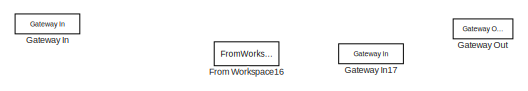
[diagram: root canvas - part 1/5, top center region]
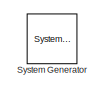
[diagram: root canvas - part 2/5, top left region]
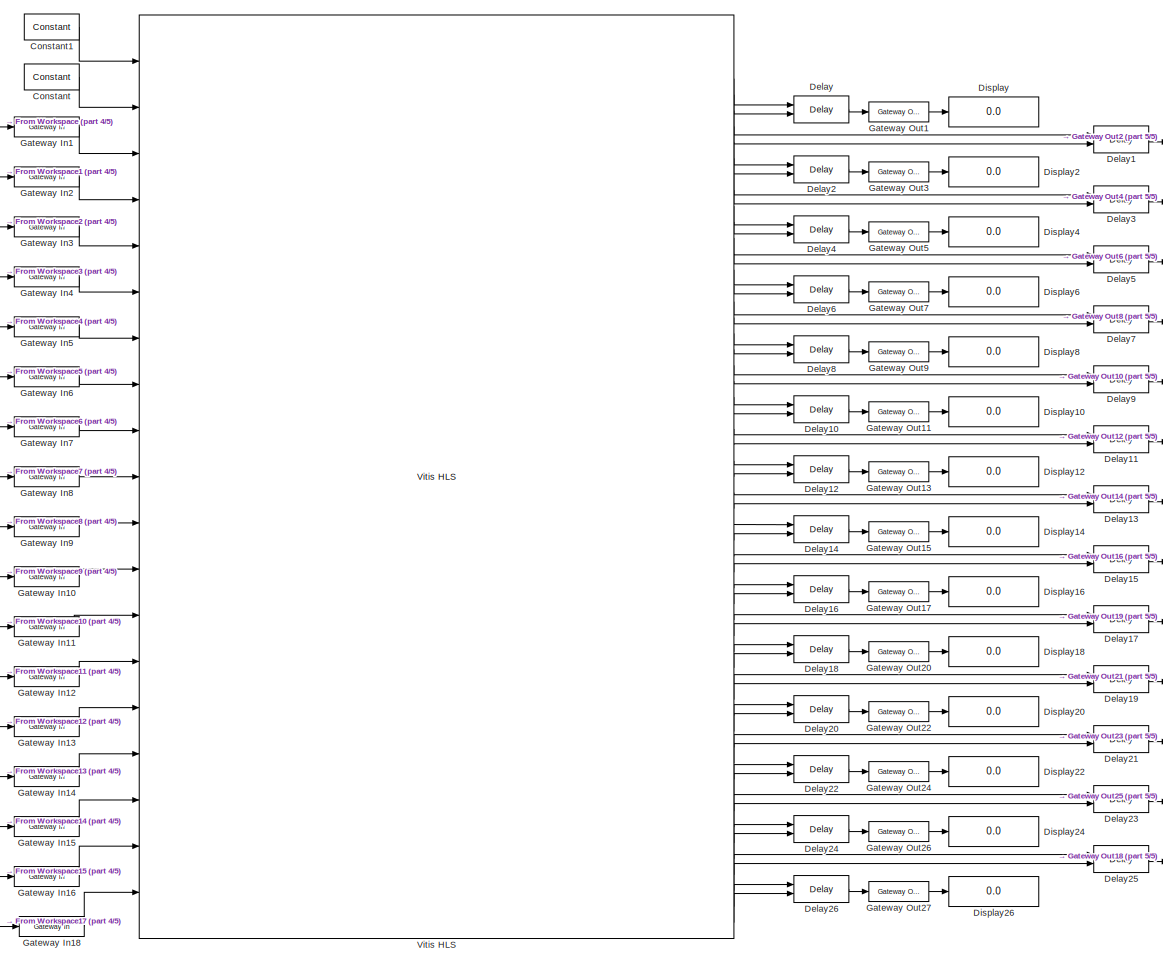
[diagram: root canvas - part 3/5, center side, full height]
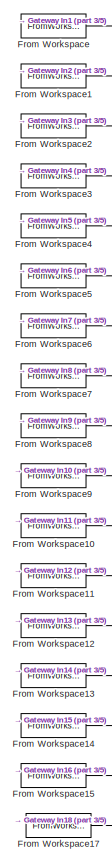
[diagram: root canvas - part 4/5, middle left region]
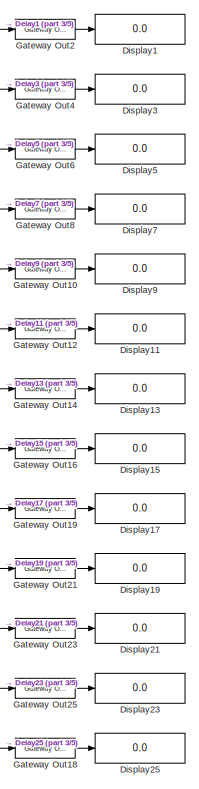
[diagram: root canvas - part 5/5, middle right region]
MODEL slx_e1543b696a08
KIND model
CONFIG AbsTol = auto
CONFIG EnableMultiTasking = off
CONFIG FixedStep = auto
CONFIG MaxStep = auto
CONFIG MinStep = auto
CONFIG RelTol = 1e-3
CONFIG SampleTimeConstraint = Unconstrained
CONFIG SolverName = VariableStepAuto
CONFIG StartTime = 0.0
CONFIG StopTime = 1000
BLOCK [Reference]  System Generator  REF=xbsIndex_r4/ System Generator
  AttributesFormatString = System\nGenerator
  Ports = []
  SourceBlock = xbsIndex_r4/ System Generator
  SourceType = Xilinx System Generator Block
  Tag = genX
  UserDataPersistent = on
BLOCK [Reference] Constant  REF=hdlBasic/Constant
  Ports = [0, 1]
  SourceBlock = hdlBasic/Constant
  SourceType = Constant Block Block
BLOCK [Reference] Constant1  REF=hdlBasic/Constant
  Ports = [0, 1]
  SourceBlock = hdlBasic/Constant
  SourceType = Constant Block Block
BLOCK [Reference] Delay  REF=hdlBasic/Delay
  Ports = [2, 1]
  SourceBlock = hdlBasic/Delay
  SourceType = Delay Block
BLOCK [Reference] Delay1  REF=hdlBasic/Delay
  Ports = [2, 1]
  SourceBlock = hdlBasic/Delay
  SourceType = Delay Block
BLOCK [Reference] Delay10  REF=hdlBasic/Delay
  Ports = [2, 1]
  SourceBlock = hdlBasic/Delay
  SourceType = Delay Block
BLOCK [Reference] Delay11  REF=hdlBasic/Delay
  Ports = [2, 1]
  SourceBlock = hdlBasic/Delay
  SourceType = Delay Block
BLOCK [Reference] Delay12  REF=hdlBasic/Delay
  Ports = [2, 1]
  SourceBlock = hdlBasic/Delay
  SourceType = Delay Block
BLOCK [Reference] Delay13  REF=hdlBasic/Delay
  Ports = [2, 1]
  SourceBlock = hdlBasic/Delay
  SourceType = Delay Block
BLOCK [Reference] Delay14  REF=hdlBasic/Delay
  Ports = [2, 1]
  SourceBlock = hdlBasic/Delay
  SourceType = Delay Block
BLOCK [Reference] Delay15  REF=hdlBasic/Delay
  Ports = [2, 1]
  SourceBlock = hdlBasic/Delay
  SourceType = Delay Block
BLOCK [Reference] Delay16  REF=hdlBasic/Delay
  Ports = [2, 1]
  SourceBlock = hdlBasic/Delay
  SourceType = Delay Block
BLOCK [Reference] Delay17  REF=hdlBasic/Delay
  Ports = [2, 1]
  SourceBlock = hdlBasic/Delay
  SourceType = Delay Block
BLOCK [Reference] Delay18  REF=hdlBasic/Delay
  Ports = [2, 1]
  SourceBlock = hdlBasic/Delay
  SourceType = Delay Block
BLOCK [Reference] Delay19  REF=hdlBasic/Delay
  Ports = [2, 1]
  SourceBlock = hdlBasic/Delay
  SourceType = Delay Block
BLOCK [Reference] Delay2  REF=hdlBasic/Delay
  Ports = [2, 1]
  SourceBlock = hdlBasic/Delay
  SourceType = Delay Block
BLOCK [Reference] Delay20  REF=hdlBasic/Delay
  Ports = [2, 1]
  SourceBlock = hdlBasic/Delay
  SourceType = Delay Block
BLOCK [Reference] Delay21  REF=hdlBasic/Delay
  Ports = [2, 1]
  SourceBlock = hdlBasic/Delay
  SourceType = Delay Block
BLOCK [Reference] Delay22  REF=hdlBasic/Delay
  Ports = [2, 1]
  SourceBlock = hdlBasic/Delay
  SourceType = Delay Block
BLOCK [Reference] Delay23  REF=hdlBasic/Delay
  Ports = [2, 1]
  SourceBlock = hdlBasic/Delay
  SourceType = Delay Block
BLOCK [Reference] Delay24  REF=hdlBasic/Delay
  Ports = [2, 1]
  SourceBlock = hdlBasic/Delay
  SourceType = Delay Block
BLOCK [Reference] Delay25  REF=hdlBasic/Delay
  Ports = [2, 1]
  SourceBlock = hdlBasic/Delay
  SourceType = Delay Block
BLOCK [Reference] Delay26  REF=hdlBasic/Delay
  Ports = [2, 1]
  SourceBlock = hdlBasic/Delay
  SourceType = Delay Block
BLOCK [Reference] Delay3  REF=hdlBasic/Delay
  Ports = [2, 1]
  SourceBlock = hdlBasic/Delay
  SourceType = Delay Block
BLOCK [Reference] Delay4  REF=hdlBasic/Delay
  Ports = [2, 1]
  SourceBlock = hdlBasic/Delay
  SourceType = Delay Block
BLOCK [Reference] Delay5  REF=hdlBasic/Delay
  Ports = [2, 1]
  SourceBlock = hdlBasic/Delay
  SourceType = Delay Block
BLOCK [Reference] Delay6  REF=hdlBasic/Delay
  Ports = [2, 1]
  SourceBlock = hdlBasic/Delay
  SourceType = Delay Block
BLOCK [Reference] Delay7  REF=hdlBasic/Delay
  Ports = [2, 1]
  SourceBlock = hdlBasic/Delay
  SourceType = Delay Block
BLOCK [Reference] Delay8  REF=hdlBasic/Delay
  Ports = [2, 1]
  SourceBlock = hdlBasic/Delay
  SourceType = Delay Block
BLOCK [Reference] Delay9  REF=hdlBasic/Delay
  Ports = [2, 1]
  SourceBlock = hdlBasic/Delay
  SourceType = Delay Block
BLOCK [Display] Display
  Decimation = 1
  Ports = [1]
BLOCK [Display] Display1
  Decimation = 1
  Ports = [1]
BLOCK [Display] Display10
  Decimation = 1
  Ports = [1]
BLOCK [Display] Display11
  Decimation = 1
  Ports = [1]
BLOCK [Display] Display12
  Decimation = 1
  Ports = [1]
BLOCK [Display] Display13
  Decimation = 1
  Ports = [1]
BLOCK [Display] Display14
  Decimation = 1
  Ports = [1]
BLOCK [Display] Display15
  Decimation = 1
  Ports = [1]
BLOCK [Display] Display16
  Decimation = 1
  Ports = [1]
BLOCK [Display] Display17
  Decimation = 1
  Ports = [1]
BLOCK [Display] Display18
  Decimation = 1
  Ports = [1]
BLOCK [Display] Display19
  Decimation = 1
  Ports = [1]
BLOCK [Display] Display2
  Decimation = 1
  Ports = [1]
BLOCK [Display] Display20
  Decimation = 1
  Ports = [1]
BLOCK [Display] Display21
  Decimation = 1
  Ports = [1]
BLOCK [Display] Display22
  Decimation = 1
  Ports = [1]
BLOCK [Display] Display23
  Decimation = 1
  Ports = [1]
BLOCK [Display] Display24
  Decimation = 1
  Ports = [1]
BLOCK [Display] Display25
  Decimation = 1
  Ports = [1]
BLOCK [Display] Display26
  Decimation = 1
  Ports = [1]
BLOCK [Display] Display3
  Decimation = 1
  Ports = [1]
BLOCK [Display] Display4
  Decimation = 1
  Ports = [1]
BLOCK [Display] Display5
  Decimation = 1
  Ports = [1]
BLOCK [Display] Display6
  Decimation = 1
  Ports = [1]
BLOCK [Display] Display7
  Decimation = 1
  Ports = [1]
BLOCK [Display] Display8
  Decimation = 1
  Ports = [1]
BLOCK [Display] Display9
  Decimation = 1
  Ports = [1]
BLOCK [FromWorkspace] From Workspace
  OutputAfterFinalValue = Holding final value
  VariableName = a11
BLOCK [FromWorkspace] From Workspace1
  OutputAfterFinalValue = Holding final value
  VariableName = a12
BLOCK [FromWorkspace] From Workspace10
  OutputAfterFinalValue = Holding final value
  VariableName = a33
BLOCK [FromWorkspace] From Workspace11
  OutputAfterFinalValue = Holding final value
  VariableName = a34
BLOCK [FromWorkspace] From Workspace12
  OutputAfterFinalValue = Holding final value
  VariableName = a41
BLOCK [FromWorkspace] From Workspace13
  OutputAfterFinalValue = Holding final value
  VariableName = a42
BLOCK [FromWorkspace] From Workspace14
  OutputAfterFinalValue = Holding final value
  VariableName = a43
BLOCK [FromWorkspace] From Workspace15
  OutputAfterFinalValue = Holding final value
  VariableName = a44
BLOCK [FromWorkspace] From Workspace16
  Commented = on
  VariableName = a11
BLOCK [FromWorkspace] From Workspace17
  VariableName = din
BLOCK [FromWorkspace] From Workspace2
  OutputAfterFinalValue = Holding final value
  VariableName = a13
BLOCK [FromWorkspace] From Workspace3
  OutputAfterFinalValue = Holding final value
  VariableName = a14
BLOCK [FromWorkspace] From Workspace4
  OutputAfterFinalValue = Holding final value
  VariableName = a21
BLOCK [FromWorkspace] From Workspace5
  OutputAfterFinalValue = Holding final value
  VariableName = a22
BLOCK [FromWorkspace] From Workspace6
  OutputAfterFinalValue = Holding final value
  VariableName = a23
BLOCK [FromWorkspace] From Workspace7
  OutputAfterFinalValue = Holding final value
  VariableName = a24
BLOCK [FromWorkspace] From Workspace8
  OutputAfterFinalValue = Holding final value
  VariableName = a31
BLOCK [FromWorkspace] From Workspace9
  OutputAfterFinalValue = Holding final value
  VariableName = a32
BLOCK [Reference] Gateway In  REF=hdlBasic/Gateway In
  Commented = on
  Ports = [1, 1]
  SourceBlock = hdlBasic/Gateway In
  SourceType = Gateway In Block
BLOCK [Reference] Gateway In1  REF=hdlBasic/Gateway In
  Ports = [1, 1]
  SourceBlock = hdlBasic/Gateway In
  SourceType = Gateway In Block
BLOCK [Reference] Gateway In10  REF=hdlBasic/Gateway In
  Ports = [1, 1]
  SourceBlock = hdlBasic/Gateway In
  SourceType = Gateway In Block
BLOCK [Reference] Gateway In11  REF=hdlBasic/Gateway In
  Ports = [1, 1]
  SourceBlock = hdlBasic/Gateway In
  SourceType = Gateway In Block
BLOCK [Reference] Gateway In12  REF=hdlBasic/Gateway In
  Ports = [1, 1]
  SourceBlock = hdlBasic/Gateway In
  SourceType = Gateway In Block
BLOCK [Reference] Gateway In13  REF=hdlBasic/Gateway In
  Ports = [1, 1]
  SourceBlock = hdlBasic/Gateway In
  SourceType = Gateway In Block
BLOCK [Reference] Gateway In14  REF=hdlBasic/Gateway In
  Ports = [1, 1]
  SourceBlock = hdlBasic/Gateway In
  SourceType = Gateway In Block
BLOCK [Reference] Gateway In15  REF=hdlBasic/Gateway In
  Ports = [1, 1]
  SourceBlock = hdlBasic/Gateway In
  SourceType = Gateway In Block
BLOCK [Reference] Gateway In16  REF=hdlBasic/Gateway In
  Ports = [1, 1]
  SourceBlock = hdlBasic/Gateway In
  SourceType = Gateway In Block
BLOCK [Reference] Gateway In17  REF=hdlBasic/Gateway In
  Commented = on
  Ports = [1, 1]
  SourceBlock = hdlBasic/Gateway In
  SourceType = Gateway In Block
BLOCK [Reference] Gateway In18  REF=hdlBasic/Gateway In
  Ports = [1, 1]
  SourceBlock = hdlBasic/Gateway In
  SourceType = Gateway In Block
BLOCK [Reference] Gateway In2  REF=hdlBasic/Gateway In
  Ports = [1, 1]
  SourceBlock = hdlBasic/Gateway In
  SourceType = Gateway In Block
BLOCK [Reference] Gateway In3  REF=hdlBasic/Gateway In
  Ports = [1, 1]
  SourceBlock = hdlBasic/Gateway In
  SourceType = Gateway In Block
BLOCK [Reference] Gateway In4  REF=hdlBasic/Gateway In
  Ports = [1, 1]
  SourceBlock = hdlBasic/Gateway In
  SourceType = Gateway In Block
BLOCK [Reference] Gateway In5  REF=hdlBasic/Gateway In
  Ports = [1, 1]
  SourceBlock = hdlBasic/Gateway In
  SourceType = Gateway In Block
BLOCK [Reference] Gateway In6  REF=hdlBasic/Gateway In
  Ports = [1, 1]
  SourceBlock = hdlBasic/Gateway In
  SourceType = Gateway In Block
BLOCK [Reference] Gateway In7  REF=hdlBasic/Gateway In
  Ports = [1, 1]
  SourceBlock = hdlBasic/Gateway In
  SourceType = Gateway In Block
BLOCK [Reference] Gateway In8  REF=hdlBasic/Gateway In
  Ports = [1, 1]
  SourceBlock = hdlBasic/Gateway In
  SourceType = Gateway In Block
BLOCK [Reference] Gateway In9  REF=hdlBasic/Gateway In
  Ports = [1, 1]
  SourceBlock = hdlBasic/Gateway In
  SourceType = Gateway In Block
BLOCK [Reference] Gateway Out  REF=hdlBasic/Gateway Out
  Commented = on
  Ports = [1, 1]
  SourceBlock = hdlBasic/Gateway Out
  SourceType = Gateway Out Block
BLOCK [Reference] Gateway Out1  REF=hdlBasic/Gateway Out
  Ports = [1, 1]
  SourceBlock = hdlBasic/Gateway Out
  SourceType = Gateway Out Block
BLOCK [Reference] Gateway Out10  REF=hdlBasic/Gateway Out
  Ports = [1, 1]
  SourceBlock = hdlBasic/Gateway Out
  SourceType = Gateway Out Block
BLOCK [Reference] Gateway Out11  REF=hdlBasic/Gateway Out
  Ports = [1, 1]
  SourceBlock = hdlBasic/Gateway Out
  SourceType = Gateway Out Block
BLOCK [Reference] Gateway Out12  REF=hdlBasic/Gateway Out
  Ports = [1, 1]
  SourceBlock = hdlBasic/Gateway Out
  SourceType = Gateway Out Block
BLOCK [Reference] Gateway Out13  REF=hdlBasic/Gateway Out
  Ports = [1, 1]
  SourceBlock = hdlBasic/Gateway Out
  SourceType = Gateway Out Block
BLOCK [Reference] Gateway Out14  REF=hdlBasic/Gateway Out
  Ports = [1, 1]
  SourceBlock = hdlBasic/Gateway Out
  SourceType = Gateway Out Block
BLOCK [Reference] Gateway Out15  REF=hdlBasic/Gateway Out
  Ports = [1, 1]
  SourceBlock = hdlBasic/Gateway Out
  SourceType = Gateway Out Block
BLOCK [Reference] Gateway Out16  REF=hdlBasic/Gateway Out
  Ports = [1, 1]
  SourceBlock = hdlBasic/Gateway Out
  SourceType = Gateway Out Block
BLOCK [Reference] Gateway Out17  REF=hdlBasic/Gateway Out
  Ports = [1, 1]
  SourceBlock = hdlBasic/Gateway Out
  SourceType = Gateway Out Block
BLOCK [Reference] Gateway Out18  REF=hdlBasic/Gateway Out
  Ports = [1, 1]
  SourceBlock = hdlBasic/Gateway Out
  SourceType = Gateway Out Block
BLOCK [Reference] Gateway Out19  REF=hdlBasic/Gateway Out
  Ports = [1, 1]
  SourceBlock = hdlBasic/Gateway Out
  SourceType = Gateway Out Block
BLOCK [Reference] Gateway Out2  REF=hdlBasic/Gateway Out
  Ports = [1, 1]
  SourceBlock = hdlBasic/Gateway Out
  SourceType = Gateway Out Block
BLOCK [Reference] Gateway Out20  REF=hdlBasic/Gateway Out
  Ports = [1, 1]
  SourceBlock = hdlBasic/Gateway Out
  SourceType = Gateway Out Block
BLOCK [Reference] Gateway Out21  REF=hdlBasic/Gateway Out
  Ports = [1, 1]
  SourceBlock = hdlBasic/Gateway Out
  SourceType = Gateway Out Block
BLOCK [Reference] Gateway Out22  REF=hdlBasic/Gateway Out
  Ports = [1, 1]
  SourceBlock = hdlBasic/Gateway Out
  SourceType = Gateway Out Block
BLOCK [Reference] Gateway Out23  REF=hdlBasic/Gateway Out
  Ports = [1, 1]
  SourceBlock = hdlBasic/Gateway Out
  SourceType = Gateway Out Block
BLOCK [Reference] Gateway Out24  REF=hdlBasic/Gateway Out
  Ports = [1, 1]
  SourceBlock = hdlBasic/Gateway Out
  SourceType = Gateway Out Block
BLOCK [Reference] Gateway Out25  REF=hdlBasic/Gateway Out
  Ports = [1, 1]
  SourceBlock = hdlBasic/Gateway Out
  SourceType = Gateway Out Block
BLOCK [Reference] Gateway Out26  REF=hdlBasic/Gateway Out
  Ports = [1, 1]
  SourceBlock = hdlBasic/Gateway Out
  SourceType = Gateway Out Block
BLOCK [Reference] Gateway Out27  REF=hdlBasic/Gateway Out
  Ports = [1, 1]
  SourceBlock = hdlBasic/Gateway Out
  SourceType = Gateway Out Block
BLOCK [Reference] Gateway Out3  REF=hdlBasic/Gateway Out
  Ports = [1, 1]
  SourceBlock = hdlBasic/Gateway Out
  SourceType = Gateway Out Block
BLOCK [Reference] Gateway Out4  REF=hdlBasic/Gateway Out
  Ports = [1, 1]
  SourceBlock = hdlBasic/Gateway Out
  SourceType = Gateway Out Block
BLOCK [Reference] Gateway Out5  REF=hdlBasic/Gateway Out
  Ports = [1, 1]
  SourceBlock = hdlBasic/Gateway Out
  SourceType = Gateway Out Block
BLOCK [Reference] Gateway Out6  REF=hdlBasic/Gateway Out
  Ports = [1, 1]
  SourceBlock = hdlBasic/Gateway Out
  SourceType = Gateway Out Block
BLOCK [Reference] Gateway Out7  REF=hdlBasic/Gateway Out
  Ports = [1, 1]
  SourceBlock = hdlBasic/Gateway Out
  SourceType = Gateway Out Block
BLOCK [Reference] Gateway Out8  REF=hdlBasic/Gateway Out
  Ports = [1, 1]
  SourceBlock = hdlBasic/Gateway Out
  SourceType = Gateway Out Block
BLOCK [Reference] Gateway Out9  REF=hdlBasic/Gateway Out
  Ports = [1, 1]
  SourceBlock = hdlBasic/Gateway Out
  SourceType = Gateway Out Block
BLOCK [Reference] Vitis HLS  REF=hdlBasic/Vitis HLS
  Ports = [19, 57]
  SourceBlock = hdlBasic/Vitis HLS
  SourceType = Xilinx High Level Synthesis Block
LINE Constant1:1 -> Vitis HLS:1
LINE Constant:1 -> Vitis HLS:2
LINE Delay10:1 -> Gateway Out11:1
LINE Delay11:1 -> Gateway Out12:1
LINE Delay12:1 -> Gateway Out13:1
LINE Delay13:1 -> Gateway Out14:1
LINE Delay14:1 -> Gateway Out15:1
LINE Delay15:1 -> Gateway Out16:1
LINE Delay16:1 -> Gateway Out17:1
LINE Delay17:1 -> Gateway Out19:1
LINE Delay18:1 -> Gateway Out20:1
LINE Delay19:1 -> Gateway Out21:1
LINE Delay1:1 -> Gateway Out2:1
LINE Delay20:1 -> Gateway Out22:1
LINE Delay21:1 -> Gateway Out23:1
LINE Delay22:1 -> Gateway Out24:1
LINE Delay23:1 -> Gateway Out25:1
LINE Delay24:1 -> Gateway Out26:1
LINE Delay25:1 -> Gateway Out18:1
LINE Delay26:1 -> Gateway Out27:1
LINE Delay2:1 -> Gateway Out3:1
LINE Delay3:1 -> Gateway Out4:1
LINE Delay4:1 -> Gateway Out5:1
LINE Delay5:1 -> Gateway Out6:1
LINE Delay6:1 -> Gateway Out7:1
LINE Delay7:1 -> Gateway Out8:1
LINE Delay8:1 -> Gateway Out9:1
LINE Delay9:1 -> Gateway Out10:1
LINE Delay:1 -> Gateway Out1:1
LINE From Workspace10:1 -> Gateway In11:1
LINE From Workspace11:1 -> Gateway In12:1
LINE From Workspace12:1 -> Gateway In13:1
LINE From Workspace13:1 -> Gateway In14:1
LINE From Workspace14:1 -> Gateway In15:1
LINE From Workspace15:1 -> Gateway In16:1
LINE From Workspace17:1 -> Gateway In18:1
LINE From Workspace1:1 -> Gateway In2:1
LINE From Workspace2:1 -> Gateway In3:1
LINE From Workspace3:1 -> Gateway In4:1
LINE From Workspace4:1 -> Gateway In5:1
LINE From Workspace5:1 -> Gateway In6:1
LINE From Workspace6:1 -> Gateway In7:1
LINE From Workspace7:1 -> Gateway In8:1
LINE From Workspace8:1 -> Gateway In9:1
LINE From Workspace9:1 -> Gateway In10:1
LINE From Workspace:1 -> Gateway In1:1
LINE Gateway In10:1 -> Vitis HLS:12
LINE Gateway In11:1 -> Vitis HLS:13
LINE Gateway In12:1 -> Vitis HLS:14
LINE Gateway In13:1 -> Vitis HLS:15
LINE Gateway In14:1 -> Vitis HLS:16
LINE Gateway In15:1 -> Vitis HLS:17
LINE Gateway In16:1 -> Vitis HLS:18
LINE Gateway In18:1 -> Vitis HLS:19
LINE Gateway In1:1 -> Vitis HLS:3
LINE Gateway In2:1 -> Vitis HLS:4
LINE Gateway In3:1 -> Vitis HLS:5
LINE Gateway In4:1 -> Vitis HLS:6
LINE Gateway In5:1 -> Vitis HLS:7
LINE Gateway In6:1 -> Vitis HLS:8
LINE Gateway In7:1 -> Vitis HLS:9
LINE Gateway In8:1 -> Vitis HLS:10
LINE Gateway In9:1 -> Vitis HLS:11
LINE Gateway Out10:1 -> Display9:1
LINE Gateway Out11:1 -> Display10:1
LINE Gateway Out12:1 -> Display11:1
LINE Gateway Out13:1 -> Display12:1
LINE Gateway Out14:1 -> Display13:1
LINE Gateway Out15:1 -> Display14:1
LINE Gateway Out16:1 -> Display15:1
LINE Gateway Out17:1 -> Display16:1
LINE Gateway Out18:1 -> Display25:1
LINE Gateway Out19:1 -> Display17:1
LINE Gateway Out1:1 -> Display:1
LINE Gateway Out20:1 -> Display18:1
LINE Gateway Out21:1 -> Display19:1
LINE Gateway Out22:1 -> Display20:1
LINE Gateway Out23:1 -> Display21:1
LINE Gateway Out24:1 -> Display22:1
LINE Gateway Out25:1 -> Display23:1
LINE Gateway Out26:1 -> Display24:1
LINE Gateway Out27:1 -> Display26:1
LINE Gateway Out2:1 -> Display1:1
LINE Gateway Out3:1 -> Display2:1
LINE Gateway Out4:1 -> Display3:1
LINE Gateway Out5:1 -> Display4:1
LINE Gateway Out6:1 -> Display5:1
LINE Gateway Out7:1 -> Display6:1
LINE Gateway Out8:1 -> Display7:1
LINE Gateway Out9:1 -> Display8:1
LINE Vitis HLS:10 -> Delay3:1
LINE Vitis HLS:11 -> Delay3:2
LINE Vitis HLS:12 -> Delay4:1
LINE Vitis HLS:13 -> Delay4:2
LINE Vitis HLS:14 -> Delay5:1
LINE Vitis HLS:15 -> Delay5:2
LINE Vitis HLS:16 -> Delay6:1
LINE Vitis HLS:17 -> Delay6:2
LINE Vitis HLS:18 -> Delay7:1
LINE Vitis HLS:19 -> Delay7:2
LINE Vitis HLS:20 -> Delay8:1
LINE Vitis HLS:21 -> Delay8:2
LINE Vitis HLS:22 -> Delay9:1
LINE Vitis HLS:23 -> Delay9:2
LINE Vitis HLS:24 -> Delay10:1
LINE Vitis HLS:25 -> Delay10:2
LINE Vitis HLS:26 -> Delay11:1
LINE Vitis HLS:27 -> Delay11:2
LINE Vitis HLS:28 -> Delay12:1
LINE Vitis HLS:29 -> Delay12:2
LINE Vitis HLS:30 -> Delay13:1
LINE Vitis HLS:31 -> Delay13:2
LINE Vitis HLS:32 -> Delay14:1
LINE Vitis HLS:33 -> Delay14:2
LINE Vitis HLS:34 -> Delay15:1
LINE Vitis HLS:35 -> Delay15:2
LINE Vitis HLS:36 -> Delay16:1
LINE Vitis HLS:37 -> Delay16:2
LINE Vitis HLS:38 -> Delay17:1
LINE Vitis HLS:39 -> Delay17:2
LINE Vitis HLS:4 -> Delay:1
LINE Vitis HLS:40 -> Delay18:1
LINE Vitis HLS:41 -> Delay18:2
LINE Vitis HLS:42 -> Delay19:1
LINE Vitis HLS:43 -> Delay19:2
LINE Vitis HLS:44 -> Delay20:1
LINE Vitis HLS:45 -> Delay20:2
LINE Vitis HLS:46 -> Delay21:1
LINE Vitis HLS:47 -> Delay21:2
LINE Vitis HLS:48 -> Delay22:1
LINE Vitis HLS:49 -> Delay22:2
LINE Vitis HLS:5 -> Delay:2
LINE Vitis HLS:50 -> Delay23:1
LINE Vitis HLS:51 -> Delay23:2
LINE Vitis HLS:52 -> Delay24:1
LINE Vitis HLS:53 -> Delay24:2
LINE Vitis HLS:54 -> Delay25:1
LINE Vitis HLS:55 -> Delay25:2
LINE Vitis HLS:56 -> Delay26:1
LINE Vitis HLS:57 -> Delay26:2
LINE Vitis HLS:6 -> Delay1:1
LINE Vitis HLS:7 -> Delay1:2
LINE Vitis HLS:8 -> Delay2:1
LINE Vitis HLS:9 -> Delay2:2
